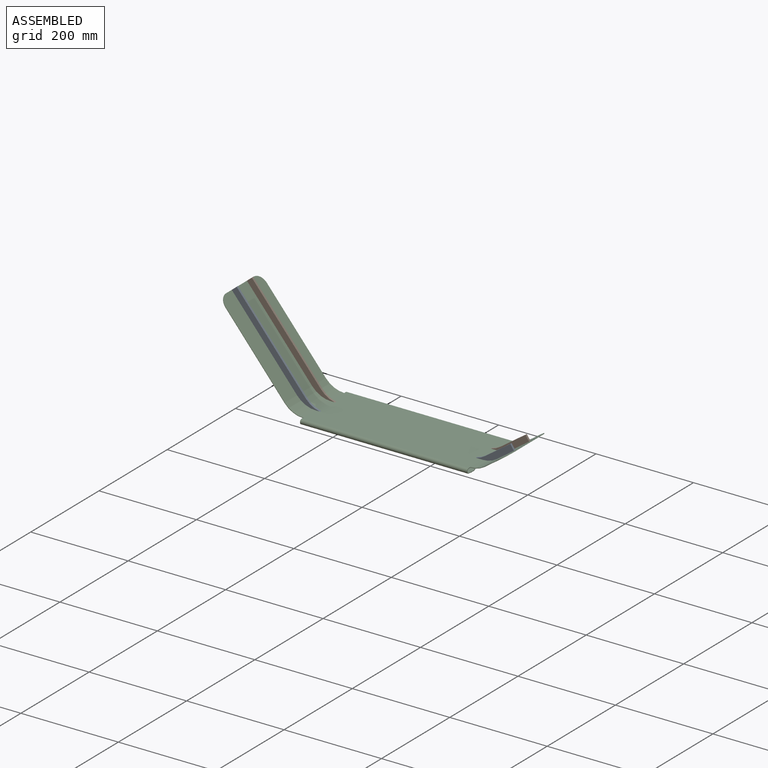
[diagram: assembled view]
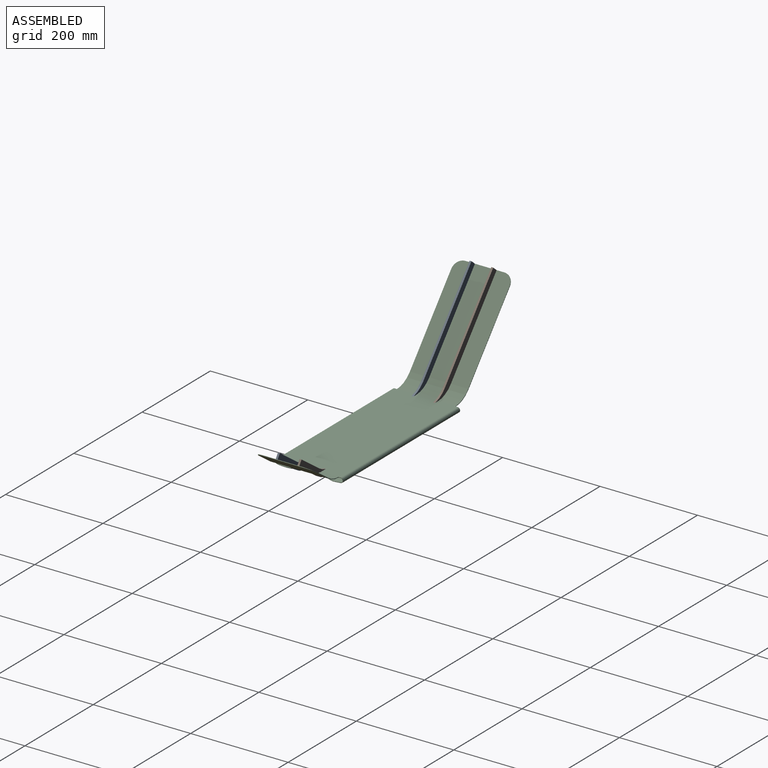
[diagram: assembled view, second angle]
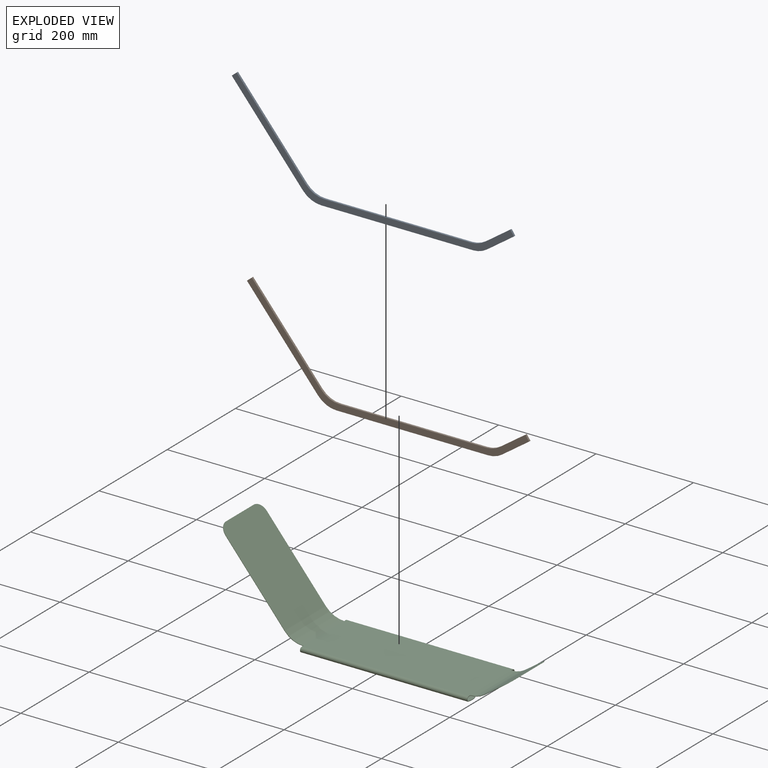
[diagram: exploded view]
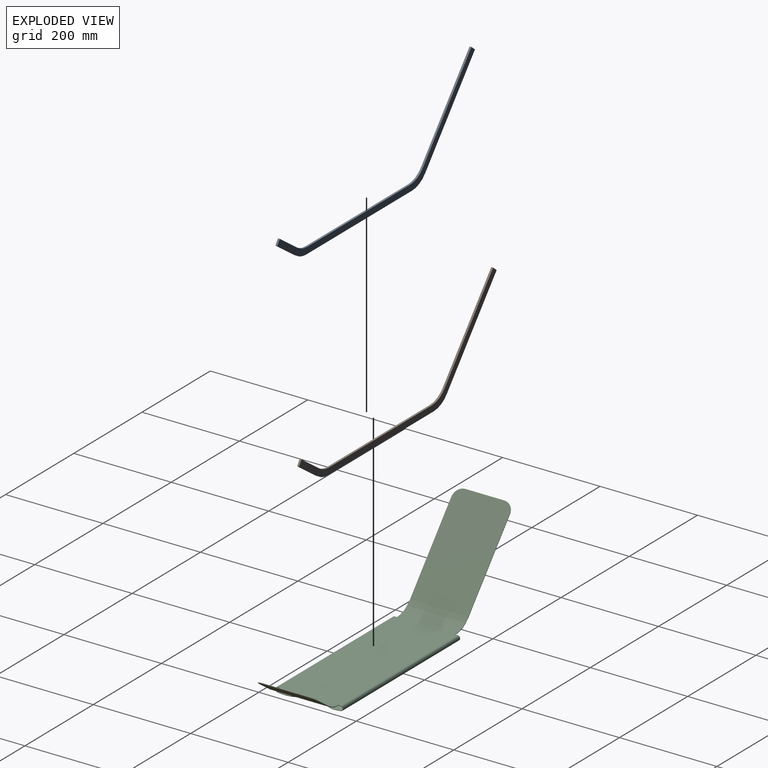
[diagram: exploded view, second angle]
ASSEMBLY  parts=3 mates=2
PART A: 14 faces, bbox 579.1x4x199.9 mm
  f0: plane 300.76x4mm, normal (0,0,1), area 1203mm2, adj f1,f11,f12,f13
  f1: cylinder r=50mm len=38.3mm, axis (0,1,0), area 174.5mm2, adj f0,f2,f12,f13
  f2: plane 169.01x141.81mm, normal (0.77,0,0.64), area 882.5mm2, adj f1,f3,f12,f13
  f3: plane 9.96x8.36mm, normal (-0.64,0,0.77), area 52mm2, adj f2,f4,f12,f13
  f4: plane 173.65x145.71mm, normal (-0.77,0,-0.64), area 906.7mm2, adj f3,f5,f12,f13
  f5: cylinder r=50mm len=38.3mm, axis (0,1,0), area 174.5mm2, adj f4,f6,f12,f13
  f6: plane 310.92x4mm, normal (0,0,-1), area 1243.7mm2, adj f5,f7,f12,f13
  f7: cylinder r=50mm len=28.68mm, axis (0,1,0), area 122.2mm2, adj f6,f8,f12,f13
  f8: plane 55.48x38.85mm, normal (0.57,0,-0.82), area 270.9mm2, adj f7,f9,f12,f13
  f9: plane 10.65x7.46mm, normal (0.82,0,0.57), area 52mm2, adj f8,f10,f12,f13
  f10: plane 52.12x36.49mm, normal (-0.57,0,0.82), area 254.5mm2, adj f9,f11,f12,f13
  f11: cylinder r=50mm len=28.68mm, axis (0,1,0), area 122.2mm2, adj f0,f10,f12,f13
  f12: plane 579.09x199.87mm, normal (0,-1,0), area 8753.3mm2, adj f0,f1,f2,f3,f4,f5,f6,f7
  f13: plane 579.09x199.87mm, normal (0,1,0), area 8753.3mm2, adj f0,f1,f2,f3,f4,f5,f6,f7
PART B: same geometry as A
PART C: 42 faces, bbox 592.6x139.3x192.5 mm
  f0: plane 163.18x159.71mm, normal (0,-1,0), area 234.7mm2, adj f2,f4,f5,f13,f33,f41
  f1: plane 163.18x159.82mm, normal (0,1,0), area 234.7mm2, adj f2,f4,f5,f13,f21,f40
  f2: plane 159.63x133.95mm, normal (0.77,0,0.64), area 24834.5mm2, adj f0,f1,f3,f13,f40,f41
  f3: plane 80x0.77mm, normal (-0.64,0,0.77), area 80mm2, adj f2,f4,f40,f41
  f4: plane 159.99x134.25mm, normal (-0.77,0,-0.64), area 24890.5mm2, adj f0,f1,f3,f5,f40,f41
  f5: cylinder r=50mm len=120mm, axis (0,1,0), area 5236mm2, adj f0,f1,f4,f6
  f6: plane 343.48x120mm, normal (0,0,-1), area 41218.1mm2, adj f5,f7,f14,f15,f24,f31
  f7: cylinder r=50mm len=120mm, axis (0,1,0), area 3665.2mm2, adj f6,f8,f14,f15
  f8: plane 120x47.84mm, normal (0.57,0,-0.82), area 6836.1mm2, adj f7,f9,f14,f15,f38,f39
  f9: plane 80x0.82mm, normal (0.82,0,0.57), area 80mm2, adj f8,f10,f38,f39
  f10: plane 120x47.58mm, normal (-0.57,0,0.82), area 6798.2mm2, adj f9,f11,f14,f15,f38,f39
  f11: cylinder r=50mm len=120mm, axis (0,1,0), area 3665.2mm2, adj f10,f12,f14,f15
  f12: plane 342.7x120mm, normal (0,0,1), area 41124.3mm2, adj f11,f13,f14,f15,f23,f25
  f13: cylinder r=50mm len=120mm, axis (0,1,0), area 5236mm2, adj f0,f1,f2,f12,f23,f25
  f14: plane 60.61x31.89mm, normal (0,-1,0), area 70.1mm2, adj f6,f7,f8,f10,f11,f12,f32,f38
  f15: plane 60.61x31.89mm, normal (0,1,0), area 70.1mm2, adj f6,f7,f8,f10,f11,f12,f22,f39
  f16: cylinder r=4.02mm len=343mm, axis (-1,0,0), area 4054.1mm2, adj f17,f21,f22,f24
  f17: plane 343x47.73mm, normal (0,-0.1,0.99), area 15773.2mm2, adj f16,f18,f21,f22,f34,f36
  f18: plane 263x0.99mm, normal (0,-0.99,-0.1), area 263mm2, adj f17,f19,f34,f36
  f19: plane 343x47.75mm, normal (0,0.1,-0.99), area 15781.1mm2, adj f18,f20,f21,f22,f34,f36
  f20: cylinder r=5.02mm len=343mm, axis (-1,0,0), area 5072.1mm2, adj f19,f21,f22,f23
  f21: plane 12.55x10.83mm, normal (-1,0,0), area 26.3mm2, adj f1,f16,f17,f19,f20,f23,f24,f34
  f22: plane 12.55x10.83mm, normal (1,0,0), area 26.3mm2, adj f15,f16,f17,f19,f20,f23,f24,f36
  f23: plane 343x5.05mm, normal (0,0,1), area 1731mm2, adj f12,f13,f20,f21,f22
  f24: plane 343x5mm, normal (0,0,-1), area 1715mm2, adj f6,f16,f21,f22
  f25: plane 343x5.05mm, normal (0,0,1), area 1731mm2, adj f12,f13,f26,f32,f33
  f26: cylinder r=5.02mm len=343mm, axis (-1,0,0), area 5072.1mm2, adj f25,f27,f32,f33
  f27: plane 343x47.75mm, normal (0,-0.1,-0.99), area 15781.1mm2, adj f26,f28,f32,f33,f35,f37
  f28: plane 263x0.99mm, normal (0,0.99,-0.1), area 263mm2, adj f27,f29,f35,f37
  f29: plane 343x47.73mm, normal (0,0.1,0.99), area 15773.2mm2, adj f28,f30,f32,f33,f35,f37
  f30: cylinder r=4.02mm len=343mm, axis (-1,0,0), area 4054.1mm2, adj f29,f31,f32,f33
  f31: plane 343x5mm, normal (0,0,-1), area 1715mm2, adj f6,f30,f32,f33
  f32: plane 12.55x10.83mm, normal (1,0,0), area 26.3mm2, adj f14,f25,f26,f27,f29,f30,f31,f37
  f33: plane 12.55x10.83mm, normal (-1,0,0), area 26.3mm2, adj f0,f25,f26,f27,f29,f30,f31,f35
  f34: cylinder r=40mm len=40mm, axis (0,0.1,-0.99), area 62.8mm2, adj f17,f18,f19,f21
  f35: cylinder r=40mm len=40mm, axis (0,0.1,0.99), area 62.8mm2, adj f27,f28,f29,f33
  f36: cylinder r=40mm len=40mm, axis (0,-0.1,0.99), area 62.8mm2, adj f17,f18,f19,f22
  f37: cylinder r=40mm len=40mm, axis (0,-0.1,-0.99), area 62.8mm2, adj f27,f28,f29,f32
  f38: cylinder r=20mm len=20mm, axis (0.57,0,-0.82), area 31.4mm2, adj f8,f9,f10,f14
  f39: cylinder r=20mm len=20mm, axis (-0.57,0,0.82), area 31.4mm2, adj f8,f9,f10,f15
  f40: cylinder r=20mm len=20mm, axis (-0.77,0,-0.64), area 31.4mm2, adj f1,f2,f3,f4
  f41: cylinder r=20mm len=20mm, axis (0.77,0,0.64), area 31.4mm2, adj f0,f2,f3,f4
PLACE A t=(65.22,-111.24,-129.39)mm
PLACE B t=(65.22,-66.74,-129.39)mm
PLACE C t=(65.1,-90.99,-129.37)mm
MATE fastened B.f0 <-> C.f6  axis (0,0,1) through (236.91,-68.74,-129.37)mm
MATE fastened A.f0 <-> C.f6  axis (0,0,1) through (236.91,-113.24,-129.37)mm
